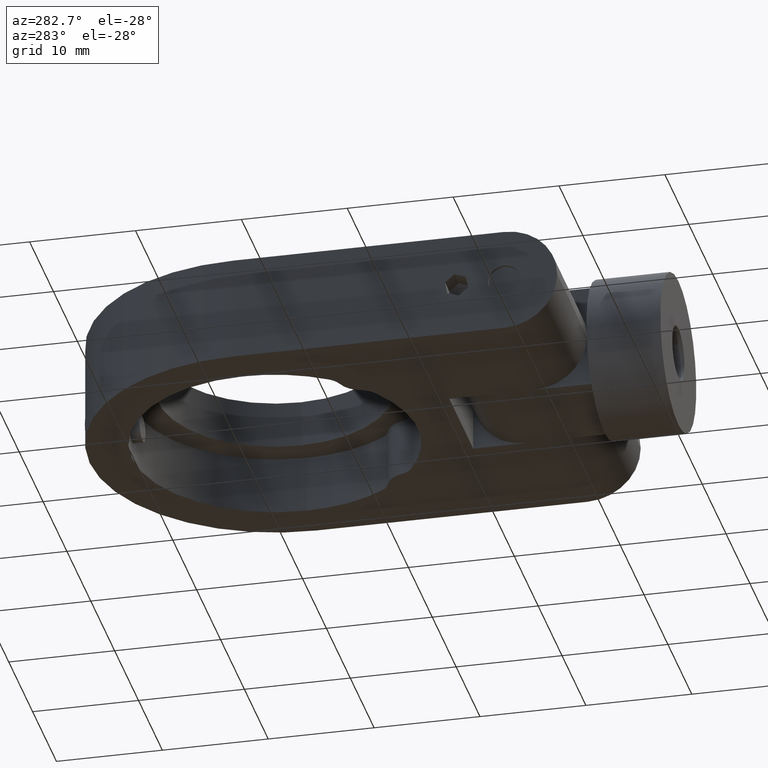
[diagram: clean part render]
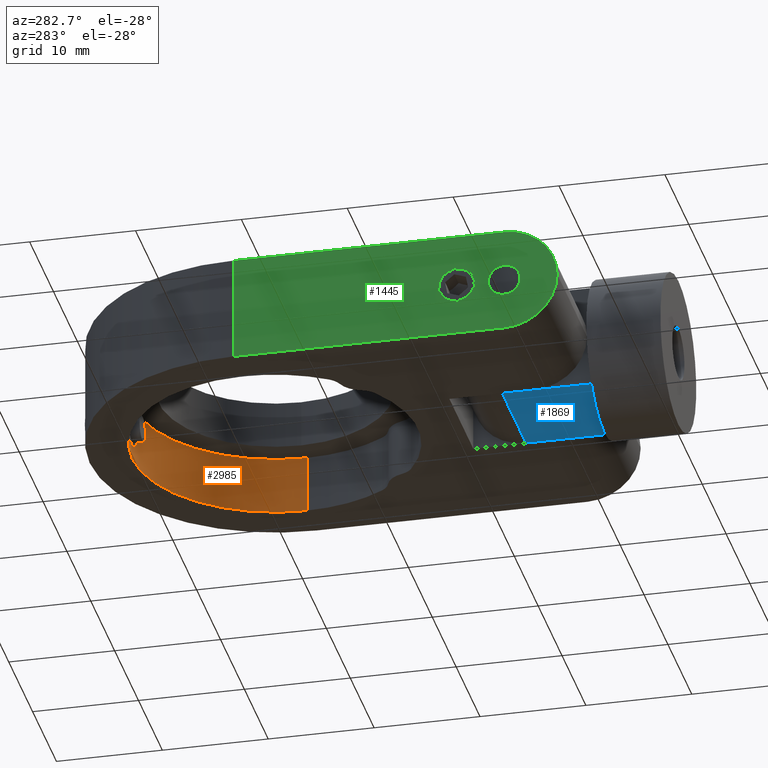
[diagram: same view with three faces highlighted in distinct colors, each labeled with its STEP entity id]
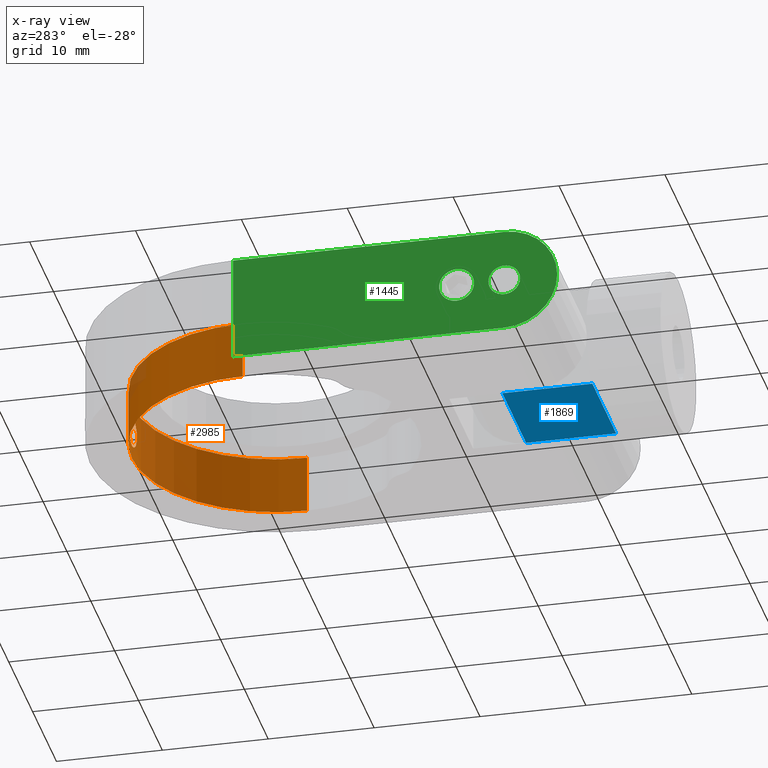
[diagram: x-ray of the same camera — body ghosted, the three highlighted faces saturated]
A machine part, auxiliary view with three faces highlighted in distinct colors.
The next image is the same camera in x-ray (body ghosted, the three faces saturated) — at least one of them is partly hidden behind the body in this view.
Their STEP definitions:

[orange] entity #2985 — the highlighted cylindrical surface (partial cylindrical patch) has radius 13.5 mm, axis along (-0, -0, -1).
#28 = CARTESIAN_POINT ( 'NONE',  ( 1.431478231649960100, 51.52402671690239100, -1.172367784813279400 ) ) ;
#41 = CARTESIAN_POINT ( 'NONE',  ( -1.089886050406788000, 51.55615536955073700, -0.7564165852604466400 ) ) ;
#50 = CARTESIAN_POINT ( 'NONE',  ( 1.482213644228969100, 51.51844948242675300, -1.267035984372075100 ) ) ;
#105 = CARTESIAN_POINT ( 'NONE',  ( 1.639127803887759500, 51.50013842150589500, -1.782455928339511600 ) ) ;
#129 = CIRCLE ( 'NONE', #920, 13.50000000000000000 ) ;
#253 = DIRECTION ( 'NONE',  ( -1.000000000000000000, 0.0000000000000000000, 1.044046536467522800E-016 ) ) ;
#268 = VERTEX_POINT ( 'NONE', #2550 ) ;
#297 = CARTESIAN_POINT ( 'NONE',  ( -1.649920718153160500, 51.49879702175430700, -2.216068126354445900 ) ) ;
#331 = CARTESIAN_POINT ( 'NONE',  ( -0.5317022804882479700, 51.58989597384508800, -0.4342782303202572500 ) ) ;
#344 = CARTESIAN_POINT ( 'NONE',  ( 1.565197627056210900, 51.50902308849659100, -1.466755287319660100 ) ) ;
#456 = EDGE_LOOP ( 'NONE', ( #3240, #914 ) ) ;
#507 = VERTEX_POINT ( 'NONE', #2074 ) ;
#573 = EDGE_LOOP ( 'NONE', ( #2257, #1512, #2450, #3719 ) ) ;
#603 = CARTESIAN_POINT ( 'NONE',  ( -0.8268346053209025800, 51.57495523017863100, -3.431945171663439300 ) ) ;
#617 = CARTESIAN_POINT ( 'NONE',  ( -1.090939668989867400, 51.55606456767559100, -3.242543491345666800 ) ) ;
#632 = CARTESIAN_POINT ( 'NONE',  ( 1.013751119353739000, 51.56275026523245900, -0.6805037258578265900 ) ) ;
#646 = CARTESIAN_POINT ( 'NONE',  ( 13.49999999999999800, 38.10000000000000100, 0.5000000000000007800 ) ) ;
#672 = CARTESIAN_POINT ( 'NONE',  ( 1.432636359510178500, 51.52390279988094300, -2.825635004802890200 ) ) ;
#736 = VERTEX_POINT ( 'NONE', #646 ) ;
#805 = DIRECTION ( 'NONE',  ( -1.000000000000000000, 0.0000000000000000000, 1.044046536467522800E-016 ) ) ;
#854 = EDGE_CURVE ( 'NONE', #268, #862, #129, .T. ) ;
#862 = VERTEX_POINT ( 'NONE', #3716 ) ;
#870 = DIRECTION ( 'NONE',  ( -1.057139645054936500E-016, -1.718301073974566900E-032, -1.000000000000000000 ) ) ;
#895 = CARTESIAN_POINT ( 'NONE',  ( -0.7320952082470924000, 51.58050582233332200, -3.482643682789528000 ) ) ;
#907 = CARTESIAN_POINT ( 'NONE',  ( -2.877728750691411100E-015, 51.59999999999999400, -0.3500000000000046400 ) ) ;
#914 = ORIENTED_EDGE ( 'NONE', *, *, #1908, .T. ) ;
#920 = AXIS2_PLACEMENT_3D ( 'NONE', #1036, #1607, #3086 ) ;
#934 = CARTESIAN_POINT ( 'NONE',  ( 1.311714747343751800, 51.53625794800760200, -0.9932679438383349400 ) ) ;
#945 = CARTESIAN_POINT ( 'NONE',  ( -0.5323084391843505600, 51.58987206557106500, -3.565516978389940300 ) ) ;
#971 = CARTESIAN_POINT ( 'NONE',  ( 13.49999999999999800, 38.10000000000000100, 0.5000000000000007800 ) ) ;
#1010 = AXIS2_PLACEMENT_3D ( 'NONE', #1922, #1662, #805 ) ;
#1036 = CARTESIAN_POINT ( 'NONE',  ( -2.996752460788856200E-015, 38.09999999999999400, -4.999999999999997300 ) ) ;
#1041 = FACE_BOUND ( 'NONE', #456, .T. ) ;
#1094 = VERTEX_POINT ( 'NONE', #1881 ) ;
#1108 = CARTESIAN_POINT ( 'NONE',  ( -2.933111835926545600E-015, 51.59999999999999400, -3.649999999999990100 ) ) ;
#1188 = CARTESIAN_POINT ( 'NONE',  ( -1.441902270661622000, 51.52303167484919300, -2.830424704343513600 ) ) ;
#1199 = CARTESIAN_POINT ( 'NONE',  ( -0.2171809105130793900, 51.59866802050275700, -0.3607995200682961900 ) ) ;
#1211 = CARTESIAN_POINT ( 'NONE',  ( -1.319008744130448100, 51.53627582242301500, -3.014381925091483600 ) ) ;
#1219 = EDGE_CURVE ( 'NONE', #507, #268, #3371, .T. ) ;
#1221 = CARTESIAN_POINT ( 'NONE',  ( 0.4326742933802128500, 51.59452899094115700, -0.3932991651087450700 ) ) ;
#1246 = DIRECTION ( 'NONE',  ( -1.057139645054936500E-016, -1.718301073974566900E-032, -1.000000000000000000 ) ) ;
#1297 = CARTESIAN_POINT ( 'NONE',  ( 1.639441864642909000, 51.50009977025840200, -2.215177527298936200 ) ) ;
#1333 = EDGE_CURVE ( 'NONE', #736, #862, #3366, .T. ) ;
#1476 = CARTESIAN_POINT ( 'NONE',  ( -0.2164141382453423100, 51.59867792062929900, -3.639280302690810500 ) ) ;
#1488 = CARTESIAN_POINT ( 'NONE',  ( -1.650039473840996500, 51.49878239752992200, -1.892875364080622800 ) ) ;
#1500 = CARTESIAN_POINT ( 'NONE',  ( -1.006632458963409700, 51.56271535049004500, -0.6882317601229054300 ) ) ;
#1512 = ORIENTED_EDGE ( 'NONE', *, *, #3618, .F. ) ;
#1524 = CARTESIAN_POINT ( 'NONE',  ( 0.8298308053255175600, 51.57593783623373400, -0.5577533319417505900 ) ) ;
#1525 = VERTEX_POINT ( 'NONE', #1108 ) ;
#1548 = CARTESIAN_POINT ( 'NONE',  ( 1.015604364176189600, 51.56260759506744100, -3.318057139118858700 ) ) ;
#1607 = DIRECTION ( 'NONE',  ( -1.057139645054936500E-016, -1.718301073974566900E-032, -1.000000000000000000 ) ) ;
#1662 = DIRECTION ( 'NONE',  ( -1.057139645054936500E-016, -1.718301073974566900E-032, -1.000000000000000000 ) ) ;
#1760 = VECTOR ( 'NONE', #1246, 1000.000000000000000 ) ;
#1773 = CARTESIAN_POINT ( 'NONE',  ( -1.243825514994975500, 51.54279982074447700, -0.9103902531024789000 ) ) ;
#1809 = CARTESIAN_POINT ( 'NONE',  ( -1.483149232437144900, 51.51834574499452700, -1.268925283710001100 ) ) ;
#1881 = CARTESIAN_POINT ( 'NONE',  ( -2.877728750691411100E-015, 51.59999999999999400, -0.3500000000000046400 ) ) ;
#1898 = EDGE_CURVE ( 'NONE', #1525, #1094, #3677, .T. ) ;
#1908 = EDGE_CURVE ( 'NONE', #1094, #1525, #1973, .T. ) ;
#1922 = CARTESIAN_POINT ( 'NONE',  ( -2.415325656008640800E-015, 38.09999999999999400, 0.5000000000000022200 ) ) ;
#1973 = B_SPLINE_CURVE_WITH_KNOTS ( 'NONE', 3,
 ( #907, #3285, #1221, #1524, #632, #3624, #934, #28, #50, #344, #3071, #105, #2442, #2135, #1297, #2752, #3663, #2404, #672, #3047, #2454, #1548, #2425, #2766, #3061, #3635 ),
 .UNSPECIFIED., .F., .F.,
 ( 4, 2, 2, 2, 2, 2, 2, 2, 2, 2, 2, 2, 4 ),
 ( 0.005163477524172893100, 0.005808758060064341300, 0.006454038595955788700, 0.006776678863901514100, 0.007099319131847238600, 0.007421959399792963200, 0.007744599667738687700, 0.008067239935684412200, 0.008389880203630135900, 0.008712520471575861300, 0.009035160739521586700, 0.009680441275413034100, 0.01032572181130448500 ),
 .UNSPECIFIED. ) ;
#2044 = CARTESIAN_POINT ( 'NONE',  ( -0.4288359175253905200, 51.59360239637568000, -0.4030511851847672900 ) ) ;
#2054 = CARTESIAN_POINT ( 'NONE',  ( -0.8280097723036505800, 51.57488082814568700, -0.5687611521627050600 ) ) ;
#2067 = CARTESIAN_POINT ( 'NONE',  ( -0.4274529846851774500, 51.59364386035147000, -3.597297384930647100 ) ) ;
#2074 = CARTESIAN_POINT ( 'NONE',  ( -13.50000000000000200, 38.09999999999999400, 0.5000000000000035500 ) ) ;
#2080 = CARTESIAN_POINT ( 'NONE',  ( -0.1091291199582235100, 51.60000000000000100, -3.649999999999990100 ) ) ;
#2095 = CARTESIAN_POINT ( 'NONE',  ( -1.006129997478855600, 51.56275515442688100, -3.312183244588805300 ) ) ;
#2135 = CARTESIAN_POINT ( 'NONE',  ( 1.650078336306626300, 51.49877761179540400, -2.107907989730274600 ) ) ;
#2257 = ORIENTED_EDGE ( 'NONE', *, *, #1333, .F. ) ;
#2357 = CARTESIAN_POINT ( 'NONE',  ( -1.639283045340537400, 51.50011949167771500, -1.783434652410751200 ) ) ;
#2381 = CARTESIAN_POINT ( 'NONE',  ( -0.1077379571067384500, 51.60000000000000900, -0.3500000000000045300 ) ) ;
#2396 = CARTESIAN_POINT ( 'NONE',  ( -1.597102014448764000, 51.50521228662289300, -1.571730682909573600 ) ) ;
#2404 = CARTESIAN_POINT ( 'NONE',  ( 1.483244677313321700, 51.51833509080950800, -2.730871936736749100 ) ) ;
#2425 = CARTESIAN_POINT ( 'NONE',  ( 0.8317975339923942000, 51.57581400551098500, -3.441103537871557100 ) ) ;
#2442 = CARTESIAN_POINT ( 'NONE',  ( 1.649920803647619200, 51.49879701122414100, -1.889709511349030100 ) ) ;
#2450 = ORIENTED_EDGE ( 'NONE', *, *, #1219, .T. ) ;
#2454 = CARTESIAN_POINT ( 'NONE',  ( 1.243493541394959000, 51.54282476577503000, -3.089853441586516000 ) ) ;
#2511 = AXIS2_PLACEMENT_3D ( 'NONE', #2617, #870, #253 ) ;
#2550 = CARTESIAN_POINT ( 'NONE',  ( -13.50000000000000500, 38.09999999999999400, -4.999999999999995600 ) ) ;
#2617 = CARTESIAN_POINT ( 'NONE',  ( -2.415325656008640800E-015, 38.09999999999999400, 0.5000000000000022200 ) ) ;
#2644 = CARTESIAN_POINT ( 'NONE',  ( -2.933111835926545600E-015, 51.59999999999999400, -3.649999999999990100 ) ) ;
#2656 = CARTESIAN_POINT ( 'NONE',  ( -13.50000000000000200, 38.09999999999999400, 0.5000000000000035500 ) ) ;
#2692 = CYLINDRICAL_SURFACE ( 'NONE', #1010, 13.50000000000000000 ) ;
#2739 = VECTOR ( 'NONE', #2994, 1000.000000000000000 ) ;
#2752 = CARTESIAN_POINT ( 'NONE',  ( 1.597627711452166200, 51.50514935299204200, -2.426212026341838500 ) ) ;
#2766 = CARTESIAN_POINT ( 'NONE',  ( 0.4349932686865017300, 51.59445186381717700, -3.606065814535376600 ) ) ;
#2879 = FACE_OUTER_BOUND ( 'NONE', #573, .T. ) ;
#2969 = CARTESIAN_POINT ( 'NONE',  ( -0.7314902724084038100, 51.58053866437134600, -0.5170590178643829100 ) ) ;
#2985 = ADVANCED_FACE ( 'NONE', ( #2879, #1041 ), #2692, .F. ) ;
#2994 = DIRECTION ( 'NONE',  ( -1.057139645054936500E-016, -1.718301073974566900E-032, -1.000000000000000000 ) ) ;
#3008 = CARTESIAN_POINT ( 'NONE',  ( -2.877728750691411100E-015, 51.59999999999999400, -0.3500000000000046400 ) ) ;
#3047 = CARTESIAN_POINT ( 'NONE',  ( 1.313037810601573000, 51.53612834960920000, -3.005013337064275100 ) ) ;
#3061 = CARTESIAN_POINT ( 'NONE',  ( 0.2182061114536381600, 51.59999999999999400, -3.649999999999989700 ) ) ;
#3071 = CARTESIAN_POINT ( 'NONE',  ( 1.597022550847915400, 51.50522169324623400, -1.571532553540232700 ) ) ;
#3078 = CIRCLE ( 'NONE', #2511, 13.50000000000000000 ) ;
#3086 = DIRECTION ( 'NONE',  ( -1.000000000000000000, 0.0000000000000000000, 1.284980352575412700E-016 ) ) ;
#3240 = ORIENTED_EDGE ( 'NONE', *, *, #1898, .T. ) ;
#3270 = CARTESIAN_POINT ( 'NONE',  ( -1.606511336086521100, 51.50432701888345800, -2.433368982217985800 ) ) ;
#3285 = CARTESIAN_POINT ( 'NONE',  ( 0.2154244502770665500, 51.59999999999998700, -0.3500000000000044700 ) ) ;
#3300 = CARTESIAN_POINT ( 'NONE',  ( -1.431503119899456800, 51.52402329545189000, -1.172446279688229100 ) ) ;
#3366 = LINE ( 'NONE', #971, #1760 ) ;
#3371 = LINE ( 'NONE', #2656, #2739 ) ;
#3578 = CARTESIAN_POINT ( 'NONE',  ( -1.312080836317637900, 51.53622143677621600, -0.9937742692359037300 ) ) ;
#3609 = CARTESIAN_POINT ( 'NONE',  ( -1.565903384782652500, 51.50894032977318200, -1.468823498257288500 ) ) ;
#3618 = EDGE_CURVE ( 'NONE', #507, #736, #3078, .T. ) ;
#3624 = CARTESIAN_POINT ( 'NONE',  ( 1.242036977832117600, 51.54296017083659400, -0.9084828984096723300 ) ) ;
#3635 = CARTESIAN_POINT ( 'NONE',  ( -2.933111835926545600E-015, 51.59999999999999400, -3.649999999999990100 ) ) ;
#3663 = CARTESIAN_POINT ( 'NONE',  ( 1.565932050637062400, 51.50893687787424800, -2.531079441774235900 ) ) ;
#3677 = B_SPLINE_CURVE_WITH_KNOTS ( 'NONE', 3,
 ( #2644, #2080, #1476, #2067, #945, #895, #603, #2095, #617, #1211, #1188, #3270, #297, #1488, #2357, #2396, #3609, #1809, #3300, #3578, #1773, #41, #1500, #2054, #2969, #331, #2044, #1199, #2381, #3008 ),
 .UNSPECIFIED., .F., .F.,
 ( 4, 2, 2, 2, 2, 2, 2, 2, 2, 2, 2, 2, 2, 2, 4 ),
 ( 8.881716692758750700E-020, 0.0003227173452608053300, 0.0006454346905216105500, 0.0009681520357824161000, 0.001290869381043221800, 0.001936304071564833700, 0.002581738762086446100, 0.002904456107347251900, 0.003227173452608057700, 0.003549890797868863400, 0.003872608143129669200, 0.004195325488390475400, 0.004518042833651280700, 0.004840760178912086900, 0.005163477524172893100 ),
 .UNSPECIFIED. ) ;
#3716 = CARTESIAN_POINT ( 'NONE',  ( 13.49999999999999600, 38.10000000000000100, -4.999999999999999100 ) ) ;
#3719 = ORIENTED_EDGE ( 'NONE', *, *, #854, .T. ) ;

[blue] entity #1869 — the highlighted planar face has unit normal (0, 0, 1).
#6 = LINE ( 'NONE', #3160, #2565 ) ;
#9 = DIRECTION ( 'NONE',  ( 0.0000000000000000000, -1.000000000000000000, 2.220446049250313600E-016 ) ) ;
#183 = AXIS2_PLACEMENT_3D ( 'NONE', #2979, #309, #2657 ) ;
#248 = LINE ( 'NONE', #3249, #3331 ) ;
#309 = DIRECTION ( 'NONE',  ( 0.0000000000000000000, 0.0000000000000000000, 1.000000000000000000 ) ) ;
#396 = EDGE_CURVE ( 'NONE', #1032, #3604, #6, .T. ) ;
#408 = VECTOR ( 'NONE', #1234, 1000.000000000000000 ) ;
#481 = CARTESIAN_POINT ( 'NONE',  ( -5.000000000000000900, 15.50000000000000000, -5.000000000000003600 ) ) ;
#720 = EDGE_CURVE ( 'NONE', #3604, #931, #1203, .T. ) ;
#859 = ORIENTED_EDGE ( 'NONE', *, *, #3004, .T. ) ;
#886 = CARTESIAN_POINT ( 'NONE',  ( 5.000000000000000900, 15.50000000000000000, -5.000000000000003600 ) ) ;
#922 = PLANE ( 'NONE',  #183 ) ;
#931 = VERTEX_POINT ( 'NONE', #2168 ) ;
#1032 = VERTEX_POINT ( 'NONE', #481 ) ;
#1051 = DIRECTION ( 'NONE',  ( -1.000000000000000000, 0.0000000000000000000, 0.0000000000000000000 ) ) ;
#1203 = LINE ( 'NONE', #3622, #408 ) ;
#1234 = DIRECTION ( 'NONE',  ( 0.0000000000000000000, -1.000000000000000000, 2.220446049250313600E-016 ) ) ;
#1384 = EDGE_LOOP ( 'NONE', ( #3104, #2188, #3646, #859 ) ) ;
#1650 = CARTESIAN_POINT ( 'NONE',  ( 5.000000000000000900, 7.000000000000000000, -5.000000000000001800 ) ) ;
#1869 = ADVANCED_FACE ( 'NONE', ( #3657 ), #922, .F. ) ;
#1974 = CARTESIAN_POINT ( 'NONE',  ( -5.000000000000000900, 7.000000000000000000, -5.000000000000001800 ) ) ;
#2168 = CARTESIAN_POINT ( 'NONE',  ( 5.000000000000000900, 7.000000000000000000, -5.000000000000001800 ) ) ;
#2188 = ORIENTED_EDGE ( 'NONE', *, *, #396, .T. ) ;
#2319 = EDGE_CURVE ( 'NONE', #1032, #3582, #248, .T. ) ;
#2406 = LINE ( 'NONE', #1650, #3602 ) ;
#2565 = VECTOR ( 'NONE', #3000, 1000.000000000000000 ) ;
#2657 = DIRECTION ( 'NONE',  ( 1.000000000000000000, 0.0000000000000000000, 0.0000000000000000000 ) ) ;
#2979 = CARTESIAN_POINT ( 'NONE',  ( 5.000000000000000900, 20.50000000000000000, -5.000000000000004400 ) ) ;
#3000 = DIRECTION ( 'NONE',  ( 1.000000000000000000, -0.0000000000000000000, -0.0000000000000000000 ) ) ;
#3004 = EDGE_CURVE ( 'NONE', #931, #3582, #2406, .T. ) ;
#3104 = ORIENTED_EDGE ( 'NONE', *, *, #2319, .F. ) ;
#3160 = CARTESIAN_POINT ( 'NONE',  ( 5.000000000000000900, 15.50000000000000000, -5.000000000000003600 ) ) ;
#3249 = CARTESIAN_POINT ( 'NONE',  ( -5.000000000000000900, 20.50000000000000000, -5.000000000000004400 ) ) ;
#3331 = VECTOR ( 'NONE', #9, 1000.000000000000000 ) ;
#3582 = VERTEX_POINT ( 'NONE', #1974 ) ;
#3602 = VECTOR ( 'NONE', #1051, 1000.000000000000000 ) ;
#3604 = VERTEX_POINT ( 'NONE', #886 ) ;
#3622 = CARTESIAN_POINT ( 'NONE',  ( 5.000000000000000900, 20.50000000000000000, -5.000000000000004400 ) ) ;
#3646 = ORIENTED_EDGE ( 'NONE', *, *, #720, .T. ) ;
#3657 = FACE_OUTER_BOUND ( 'NONE', #1384, .T. ) ;

[green] entity #1445 — the highlighted planar face has unit normal (1, 0, -0).
#12 = FACE_BOUND ( 'NONE', #473, .T. ) ;
#40 = VERTEX_POINT ( 'NONE', #1619 ) ;
#75 = AXIS2_PLACEMENT_3D ( 'NONE', #120, #3372, #2460 ) ;
#104 = DIRECTION ( 'NONE',  ( 1.057139645054936500E-016, 1.718301073974566900E-032, 1.000000000000000000 ) ) ;
#120 = CARTESIAN_POINT ( 'NONE',  ( -17.50000000000000400, 16.99999999999999300, 4.336808689942017700E-015 ) ) ;
#222 = CARTESIAN_POINT ( 'NONE',  ( -17.50000000000000400, 10.99999999999999300, 3.384149282188305800E-015 ) ) ;
#262 = AXIS2_PLACEMENT_3D ( 'NONE', #2788, #1866, #2477 ) ;
#365 = EDGE_CURVE ( 'NONE', #3146, #3471, #982, .T. ) ;
#372 = CARTESIAN_POINT ( 'NONE',  ( -17.50000000000000400, 38.09999999999999400, -4.999999999999995600 ) ) ;
#425 = CARTESIAN_POINT ( 'NONE',  ( -17.50000000000000400, 38.09999999999999400, 5.000000000000004400 ) ) ;
#428 = ORIENTED_EDGE ( 'NONE', *, *, #3552, .T. ) ;
#454 = VECTOR ( 'NONE', #1299, 1000.000000000000000 ) ;
#473 = EDGE_LOOP ( 'NONE', ( #1749, #3291 ) ) ;
#521 = DIRECTION ( 'NONE',  ( -1.000000000000000000, -4.916186801828891500E-017, 1.057139645054936500E-016 ) ) ;
#525 = EDGE_CURVE ( 'NONE', #3438, #40, #2342, .T. ) ;
#554 = CARTESIAN_POINT ( 'NONE',  ( -17.50000000000000400, 16.99999999999999300, 1.649999999999992600 ) ) ;
#665 = EDGE_CURVE ( 'NONE', #2360, #3286, #1027, .T. ) ;
#737 = CARTESIAN_POINT ( 'NONE',  ( -17.50000000000000400, 16.99999999999999300, 4.336808689942017700E-015 ) ) ;
#748 = AXIS2_PLACEMENT_3D ( 'NONE', #3785, #2842, #1983 ) ;
#770 = PLANE ( 'NONE',  #1229 ) ;
#823 = EDGE_LOOP ( 'NONE', ( #3457, #2265 ) ) ;
#982 = CIRCLE ( 'NONE', #748, 1.500000000000001300 ) ;
#1005 = EDGE_CURVE ( 'NONE', #3418, #1803, #3634, .T. ) ;
#1027 = LINE ( 'NONE', #372, #3676 ) ;
#1040 = EDGE_CURVE ( 'NONE', #3794, #3286, #2201, .T. ) ;
#1047 = EDGE_CURVE ( 'NONE', #40, #3438, #1918, .T. ) ;
#1092 = CARTESIAN_POINT ( 'NONE',  ( -17.50000000000000400, 12.49999999999999300, 4.336808689942017700E-015 ) ) ;
#1122 = ORIENTED_EDGE ( 'NONE', *, *, #1040, .T. ) ;
#1229 = AXIS2_PLACEMENT_3D ( 'NONE', #3138, #1887, #1350 ) ;
#1256 = FACE_OUTER_BOUND ( 'NONE', #2277, .T. ) ;
#1299 = DIRECTION ( 'NONE',  ( -4.916186801828891500E-017, 1.000000000000000000, -1.198591476903651100E-032 ) ) ;
#1350 = DIRECTION ( 'NONE',  ( 4.916186801828891500E-017, -1.000000000000000000, 1.198591476903651100E-032 ) ) ;
#1400 = CIRCLE ( 'NONE', #262, 1.500000000000001300 ) ;
#1445 = ADVANCED_FACE ( 'NONE', ( #2021, #12, #1256 ), #770, .F. ) ;
#1498 = AXIS2_PLACEMENT_3D ( 'NONE', #1928, #2227, #3789 ) ;
#1503 = VECTOR ( 'NONE', #2679, 1000.000000000000000 ) ;
#1507 = CARTESIAN_POINT ( 'NONE',  ( -17.50000000000000400, 38.09999999999999400, -4.999999999999995600 ) ) ;
#1617 = EDGE_CURVE ( 'NONE', #3418, #2360, #2551, .T. ) ;
#1619 = CARTESIAN_POINT ( 'NONE',  ( -17.50000000000000400, 16.99999999999999300, -1.649999999999983900 ) ) ;
#1749 = ORIENTED_EDGE ( 'NONE', *, *, #365, .F. ) ;
#1803 = VERTEX_POINT ( 'NONE', #2387 ) ;
#1866 = DIRECTION ( 'NONE',  ( -1.000000000000000000, -4.689425563139111100E-017, 1.057139645054936500E-016 ) ) ;
#1870 = DIRECTION ( 'NONE',  ( -1.000000000000000000, -1.625424873631782800E-016, 1.057139645054936500E-016 ) ) ;
#1887 = DIRECTION ( 'NONE',  ( 1.000000000000000000, 4.916186801828891500E-017, -1.057139645054936500E-016 ) ) ;
#1918 = CIRCLE ( 'NONE', #2355, 1.649999999999988400 ) ;
#1928 = CARTESIAN_POINT ( 'NONE',  ( -17.50000000000000400, 12.49999999999999300, 4.336808689942017700E-015 ) ) ;
#1983 = DIRECTION ( 'NONE',  ( 0.0000000000000000000, 1.000000000000000000, 0.0000000000000000000 ) ) ;
#1994 = CARTESIAN_POINT ( 'NONE',  ( -17.50000000000000400, 12.49999999999999300, -4.999999999999995600 ) ) ;
#2021 = FACE_BOUND ( 'NONE', #823, .T. ) ;
#2065 = EDGE_CURVE ( 'NONE', #3471, #3146, #1400, .T. ) ;
#2072 = CARTESIAN_POINT ( 'NONE',  ( -17.50000000000000400, 12.49999999999999300, 5.000000000000004400 ) ) ;
#2100 = ORIENTED_EDGE ( 'NONE', *, *, #1617, .F. ) ;
#2201 = LINE ( 'NONE', #425, #454 ) ;
#2227 = DIRECTION ( 'NONE',  ( -1.000000000000000000, -4.916186801828891500E-017, 1.057139645054936500E-016 ) ) ;
#2265 = ORIENTED_EDGE ( 'NONE', *, *, #1047, .F. ) ;
#2277 = EDGE_LOOP ( 'NONE', ( #3161, #428, #1122, #3386, #2100 ) ) ;
#2291 = CIRCLE ( 'NONE', #3423, 5.000000000000000000 ) ;
#2342 = CIRCLE ( 'NONE', #75, 1.649999999999988400 ) ;
#2355 = AXIS2_PLACEMENT_3D ( 'NONE', #737, #1870, #3114 ) ;
#2360 = VERTEX_POINT ( 'NONE', #3319 ) ;
#2373 = CARTESIAN_POINT ( 'NONE',  ( -17.50000000000000400, 13.99999999999999500, 4.336808689942017700E-015 ) ) ;
#2387 = CARTESIAN_POINT ( 'NONE',  ( -17.50000000000000400, 7.499999999999992900, 4.336808689942017700E-015 ) ) ;
#2460 = DIRECTION ( 'NONE',  ( 0.0000000000000000000, 0.0000000000000000000, 1.000000000000000000 ) ) ;
#2477 = DIRECTION ( 'NONE',  ( 0.0000000000000000000, 1.000000000000000000, 0.0000000000000000000 ) ) ;
#2551 = LINE ( 'NONE', #1507, #1503 ) ;
#2679 = DIRECTION ( 'NONE',  ( -4.916186801828891500E-017, 1.000000000000000000, -1.198591476903651100E-032 ) ) ;
#2788 = CARTESIAN_POINT ( 'NONE',  ( -17.50000000000000400, 12.49999999999999300, 4.336808689942017700E-015 ) ) ;
#2842 = DIRECTION ( 'NONE',  ( -1.000000000000000000, -4.689425563139111100E-017, 1.057139645054936500E-016 ) ) ;
#3114 = DIRECTION ( 'NONE',  ( 0.0000000000000000000, 0.0000000000000000000, 1.000000000000000000 ) ) ;
#3116 = CARTESIAN_POINT ( 'NONE',  ( -17.50000000000000400, 38.09999999999999400, 5.000000000000004400 ) ) ;
#3138 = CARTESIAN_POINT ( 'NONE',  ( -17.50000000000000400, 38.09999999999999400, -4.999999999999995600 ) ) ;
#3146 = VERTEX_POINT ( 'NONE', #2373 ) ;
#3161 = ORIENTED_EDGE ( 'NONE', *, *, #1005, .T. ) ;
#3286 = VERTEX_POINT ( 'NONE', #3116 ) ;
#3291 = ORIENTED_EDGE ( 'NONE', *, *, #2065, .F. ) ;
#3319 = CARTESIAN_POINT ( 'NONE',  ( -17.50000000000000400, 38.09999999999999400, -4.999999999999995600 ) ) ;
#3372 = DIRECTION ( 'NONE',  ( -1.000000000000000000, -1.625424873631782800E-016, 1.057139645054936500E-016 ) ) ;
#3386 = ORIENTED_EDGE ( 'NONE', *, *, #665, .F. ) ;
#3418 = VERTEX_POINT ( 'NONE', #1994 ) ;
#3423 = AXIS2_PLACEMENT_3D ( 'NONE', #1092, #521, #3815 ) ;
#3438 = VERTEX_POINT ( 'NONE', #554 ) ;
#3457 = ORIENTED_EDGE ( 'NONE', *, *, #525, .F. ) ;
#3471 = VERTEX_POINT ( 'NONE', #222 ) ;
#3552 = EDGE_CURVE ( 'NONE', #1803, #3794, #2291, .T. ) ;
#3634 = CIRCLE ( 'NONE', #1498, 5.000000000000000000 ) ;
#3676 = VECTOR ( 'NONE', #104, 1000.000000000000000 ) ;
#3785 = CARTESIAN_POINT ( 'NONE',  ( -17.50000000000000400, 12.49999999999999300, 4.336808689942017700E-015 ) ) ;
#3789 = DIRECTION ( 'NONE',  ( 0.0000000000000000000, -1.000000000000000000, 0.0000000000000000000 ) ) ;
#3794 = VERTEX_POINT ( 'NONE', #2072 ) ;
#3815 = DIRECTION ( 'NONE',  ( 0.0000000000000000000, -1.000000000000000000, 0.0000000000000000000 ) ) ;